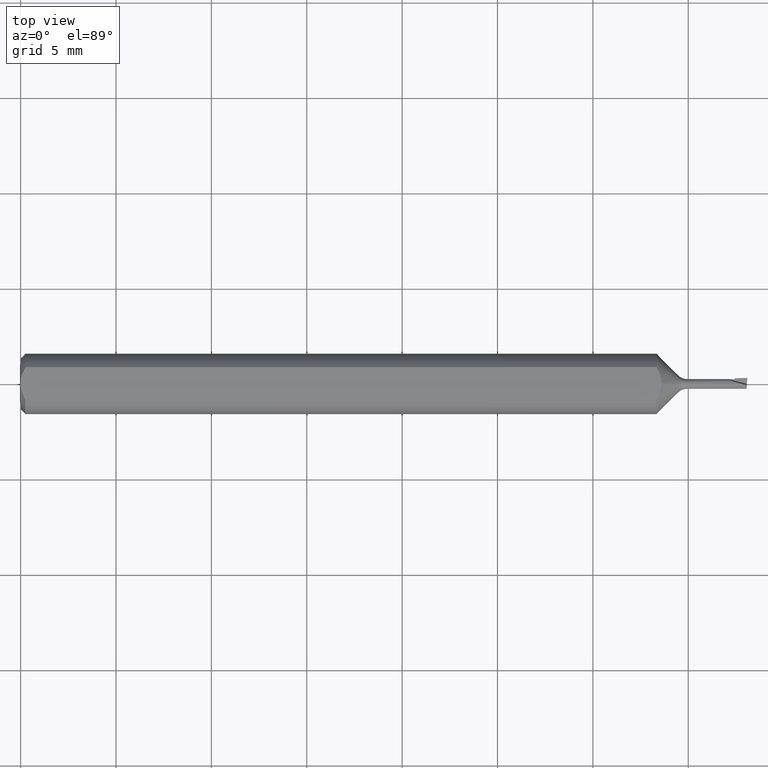
[diagram: clean part render]
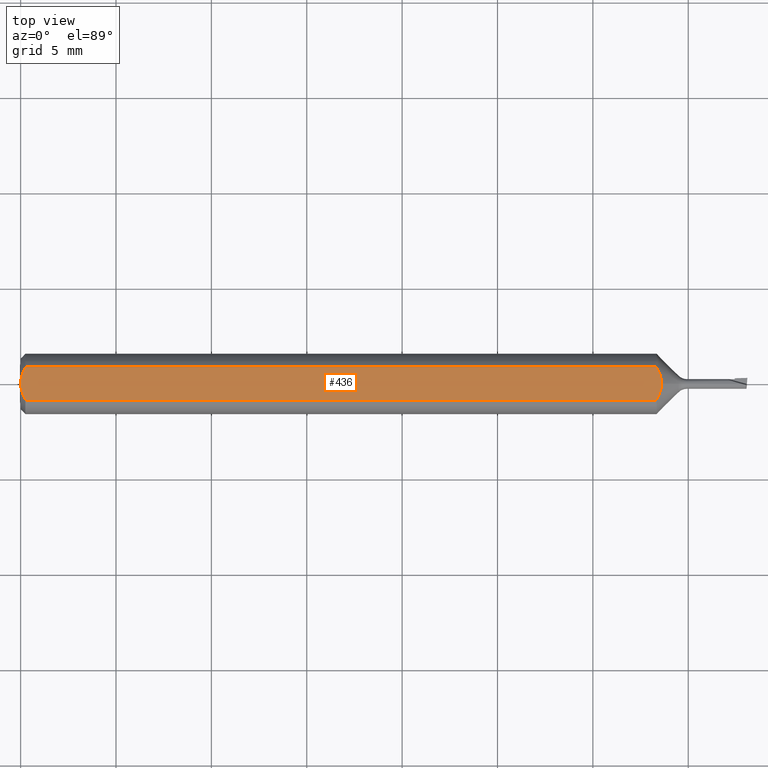
[diagram: same view with one face highlighted and labeled with its STEP entity id]
A machine part, top view. The second image highlights one B-rep face of the part: STEP entity #436.
In plain terms, the highlighted planar face has unit normal (0, 0, -1).
Its self-contained STEP definition (entity closure, byte-faithful):
#2 = CARTESIAN_POINT ( 'NONE',  ( 1.315496486667928844, 0.02862699489997218988, 0.05235000000000001458 ) ) ;
#9 = CARTESIAN_POINT ( 'NONE',  ( 0.009999999999999890921, 0.03386738844375217911, 0.05235000000000001458 ) ) ;
#10 = CARTESIAN_POINT ( 'NONE',  ( 1.312650000000000317, -0.03386738844375220686, 0.05235000000000000070 ) ) ;
#19 = EDGE_CURVE ( 'NONE', #210, #480, #233, .T. ) ;
#22 = CARTESIAN_POINT ( 'NONE',  ( 0.009999999999999890921, 0.03386738844375217911, 0.05235000000000001458 ) ) ;
#44 = CARTESIAN_POINT ( 'NONE',  ( 1.317985229763168231, -0.02321262084120600047, 0.05235000000000001458 ) ) ;
#54 = EDGE_CURVE ( 'NONE', #410, #135, #683, .T. ) ;
#62 = CARTESIAN_POINT ( 'NONE',  ( 0.000000000000000000, -0.03386738844375220686, 0.05235000000000000070 ) ) ;
#68 = AXIS2_PLACEMENT_3D ( 'NONE', #71, #167, #332 ) ;
#71 = CARTESIAN_POINT ( 'NONE',  ( 1.500000000000000222, 0.06235000000000000264, 0.05235000000000001458 ) ) ;
#72 = CARTESIAN_POINT ( 'NONE',  ( -1.099542139246802830E-15, 0.005954997531773979953, 0.05235000000000002152 ) ) ;
#75 = EDGE_CURVE ( 'NONE', #480, #406, #555, .T. ) ;
#90 = VECTOR ( 'NONE', #411, 39.37007874015748143 ) ;
#107 = DIRECTION ( 'NONE',  ( -1.000000000000000000, -0.000000000000000000, -0.000000000000000000 ) ) ;
#111 = CARTESIAN_POINT ( 'NONE',  ( 0.01000000000000840841, -0.03386738844395137393, 0.05235000000000001458 ) ) ;
#114 = ORIENTED_EDGE ( 'NONE', *, *, #75, .T. ) ;
#135 = VERTEX_POINT ( 'NONE', #225 ) ;
#149 = CARTESIAN_POINT ( 'NONE',  ( 1.322650000000000547, -0.005923004380652506853, 0.05235000000000002152 ) ) ;
#150 = ORIENTED_EDGE ( 'NONE', *, *, #626, .F. ) ;
#165 = CARTESIAN_POINT ( 'NONE',  ( 0.004679365186825695105, -0.02325953974091124477, 0.05235000000000000764 ) ) ;
#167 = DIRECTION ( 'NONE',  ( 0.000000000000000000, 0.000000000000000000, -1.000000000000000000 ) ) ;
#168 = CARTESIAN_POINT ( 'NONE',  ( 0.000000000000000000, 0.000000000000000000, 0.05235000000000033377 ) ) ;
#171 = CARTESIAN_POINT ( 'NONE',  ( 1.321578966334656879, 0.01191455685703347520, 0.05235000000000001458 ) ) ;
#173 = CARTESIAN_POINT ( 'NONE',  ( 0.000000000000000000, 0.000000000000000000, 0.05235000000000033377 ) ) ;
#196 = CARTESIAN_POINT ( 'NONE',  ( 1.312650000000000317, 0.03386738844375220686, 0.05235000000000000070 ) ) ;
#206 = ORIENTED_EDGE ( 'NONE', *, *, #439, .F. ) ;
#210 = VERTEX_POINT ( 'NONE', #22 ) ;
#217 = CARTESIAN_POINT ( 'NONE',  ( -1.070637973615595603E-15, -0.005965286321711177862, 0.05235000000000002152 ) ) ;
#225 = CARTESIAN_POINT ( 'NONE',  ( 1.322650000000000103, 8.761334592606603512E-20, 0.05235000000000001458 ) ) ;
#233 = B_SPLINE_CURVE_WITH_KNOTS ( 'NONE', 3,
 ( #9, #438, #503, #384, #72, #173 ),
 .UNSPECIFIED., .F., .F.,
 ( 4, 2, 4 ),
 ( 0.0009229516234078821539, 0.001371626545108044996, 0.001820301466808207621 ),
 .UNSPECIFIED. ) ;
#274 = CARTESIAN_POINT ( 'NONE',  ( 0.001055043921644571291, -0.01186408073217194367, 0.05235000000000002152 ) ) ;
#332 = DIRECTION ( 'NONE',  ( -1.000000000000000000, 0.000000000000000000, -0.000000000000000000 ) ) ;
#334 = CARTESIAN_POINT ( 'NONE',  ( 1.317986180560402731, 0.02321045958865959949, 0.05235000000000003539 ) ) ;
#348 = EDGE_CURVE ( 'NONE', #135, #524, #580, .T. ) ;
#355 = LINE ( 'NONE', #624, #90 ) ;
#384 = CARTESIAN_POINT ( 'NONE',  ( 0.001063697276021357847, 0.01189177144351693735, 0.05235000000000001458 ) ) ;
#405 = CARTESIAN_POINT ( 'NONE',  ( 1.315494783700979387, -0.02863013006906144076, 0.05235000000000002152 ) ) ;
#406 = VERTEX_POINT ( 'NONE', #625 ) ;
#410 = VERTEX_POINT ( 'NONE', #196 ) ;
#411 = DIRECTION ( 'NONE',  ( 1.000000000000000000, 0.000000000000000000, 0.000000000000000000 ) ) ;
#436 = ADVANCED_FACE ( 'NONE', ( #498 ), #601, .F. ) ;
#438 = CARTESIAN_POINT ( 'NONE',  ( 0.007185421074056205608, 0.02868573718286560742, 0.05235000000000002152 ) ) ;
#439 = EDGE_CURVE ( 'NONE', #524, #406, #493, .T. ) ;
#443 = CARTESIAN_POINT ( 'NONE',  ( 1.322650000000000547, 0.005921610525265143775, 0.05235000000000002152 ) ) ;
#480 = VERTEX_POINT ( 'NONE', #603 ) ;
#486 = CARTESIAN_POINT ( 'NONE',  ( 1.322650000000000103, 8.761334592606603512E-20, 0.05235000000000001458 ) ) ;
#493 = LINE ( 'NONE', #62, #653 ) ;
#498 = FACE_OUTER_BOUND ( 'NONE', #566, .T. ) ;
#503 = CARTESIAN_POINT ( 'NONE',  ( 0.004671770759546769666, 0.02323517832780105236, 0.05235000000000002152 ) ) ;
#510 = ORIENTED_EDGE ( 'NONE', *, *, #348, .F. ) ;
#515 = ORIENTED_EDGE ( 'NONE', *, *, #19, .T. ) ;
#523 = CARTESIAN_POINT ( 'NONE',  ( 1.312650000000000317, -0.03386738844375220686, 0.05235000000000000070 ) ) ;
#524 = VERTEX_POINT ( 'NONE', #10 ) ;
#555 = B_SPLINE_CURVE_WITH_KNOTS ( 'NONE', 3,
 ( #168, #217, #274, #165, #598, #111 ),
 .UNSPECIFIED., .F., .F.,
 ( 4, 2, 4 ),
 ( 0.001820301466808207621, 0.002269751589840481119, 0.002719201712872754834 ),
 .UNSPECIFIED. ) ;
#566 = EDGE_LOOP ( 'NONE', ( #150, #515, #114, #206, #510, #689 ) ) ;
#579 = CARTESIAN_POINT ( 'NONE',  ( 1.322650000000000103, 8.761334592606603512E-20, 0.05235000000000001458 ) ) ;
#580 = B_SPLINE_CURVE_WITH_KNOTS ( 'NONE', 3,
 ( #579, #149, #635, #44, #405, #523 ),
 .UNSPECIFIED., .F., .F.,
 ( 4, 2, 4 ),
 ( 0.003068051950678375456, 0.003517229247646557963, 0.003966406544614740036 ),
 .UNSPECIFIED. ) ;
#598 = CARTESIAN_POINT ( 'NONE',  ( 0.007163450771416182694, -0.02864528976632487248, 0.05235000000000001458 ) ) ;
#601 = PLANE ( 'NONE',  #68 ) ;
#603 = CARTESIAN_POINT ( 'NONE',  ( 0.000000000000000000, 0.000000000000000000, 0.05235000000000033377 ) ) ;
#608 = CARTESIAN_POINT ( 'NONE',  ( 1.312650000000000317, 0.03386738844375220686, 0.05235000000000000070 ) ) ;
#624 = CARTESIAN_POINT ( 'NONE',  ( 0.000000000000000000, 0.03386738844375220686, 0.05235000000000000070 ) ) ;
#625 = CARTESIAN_POINT ( 'NONE',  ( 0.01000000000000840841, -0.03386738844395137393, 0.05235000000000001458 ) ) ;
#626 = EDGE_CURVE ( 'NONE', #210, #410, #355, .T. ) ;
#635 = CARTESIAN_POINT ( 'NONE',  ( 1.321578094807616788, -0.01191812466551716264, 0.05235000000000002152 ) ) ;
#653 = VECTOR ( 'NONE', #107, 39.37007874015748143 ) ;
#683 = B_SPLINE_CURVE_WITH_KNOTS ( 'NONE', 3,
 ( #608, #2, #334, #171, #443, #486 ),
 .UNSPECIFIED., .F., .F.,
 ( 4, 2, 4 ),
 ( 0.002169908765734830484, 0.002618980358206603187, 0.003068051950678375456 ),
 .UNSPECIFIED. ) ;
#689 = ORIENTED_EDGE ( 'NONE', *, *, #54, .F. ) ;